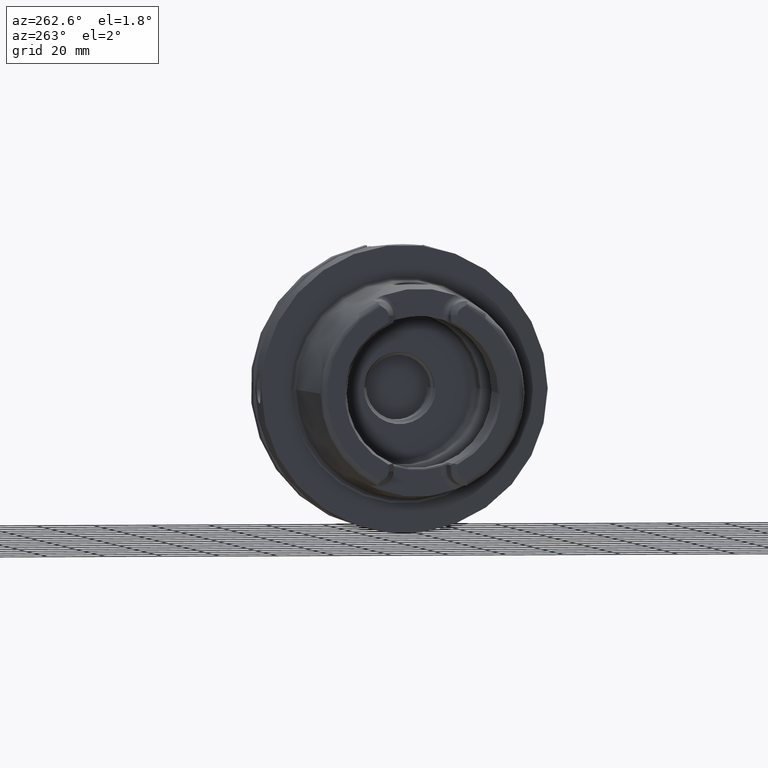
[diagram: clean part render]
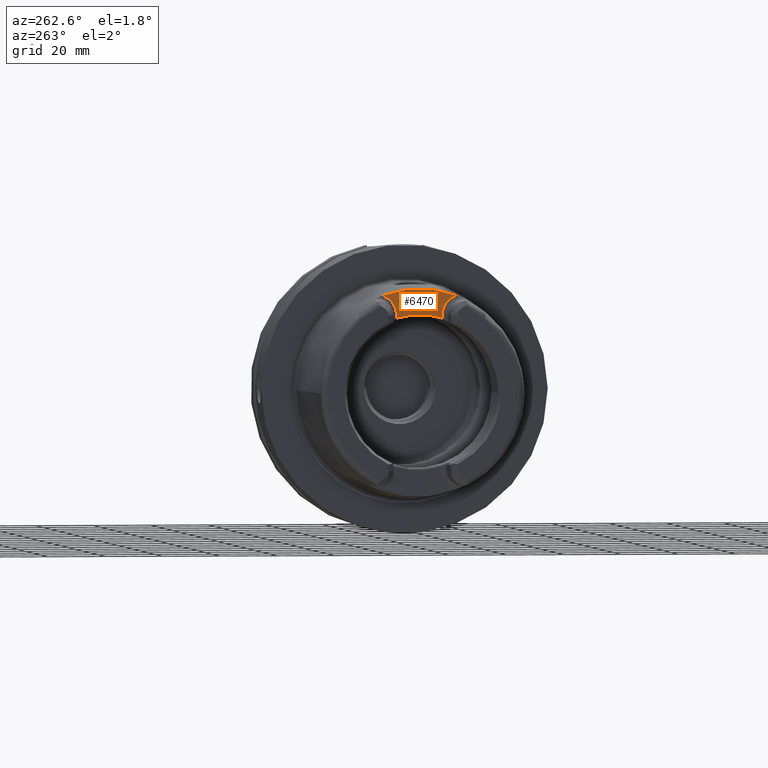
[diagram: same view with one face highlighted and labeled with its STEP entity id]
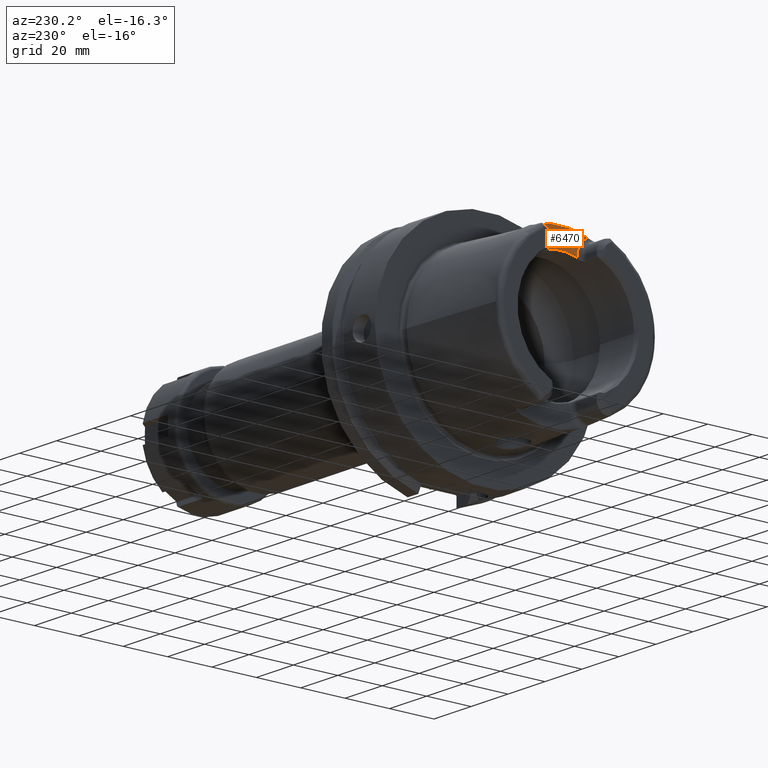
[diagram: same view with one face highlighted and labeled with its STEP entity id]
A machine part, auxiliary view. The second image highlights one B-rep face of the part: STEP entity #6470.
A second angle (auxiliary view) of the same face is appended — the face is thin or edge-on in the first view.
In plain terms, the highlighted planar face has unit normal (-1, 0, 0).
Its self-contained STEP definition (entity closure, byte-faithful):
#9=CARTESIAN_POINT('',(-4.E1,0.E0,0.E0));
#10=DIRECTION('',(1.E0,0.E0,0.E0));
#11=DIRECTION('',(0.E0,3.574556786365E-1,9.339301032789E-1));
#12=AXIS2_PLACEMENT_3D('',#9,#10,#11);
#2634=DIRECTION('',(0.E0,5.174062213620E-12,1.E0));
#2635=VECTOR('',#2634,1.199558594508E0);
#2636=CARTESIAN_POINT('',(-4.E1,8.009999999994E0,2.576044140549E1));
#2637=LINE('',#2636,#2635);
#2638=CARTESIAN_POINT('',(-4.E1,1.501E1,2.696E1));
#2639=DIRECTION('',(-1.E0,0.E0,0.E0));
#2640=DIRECTION('',(0.E0,-1.E0,0.E0));
#2641=AXIS2_PLACEMENT_3D('',#2638,#2639,#2640);
#2643=CARTESIAN_POINT('',(-4.E1,-1.501E1,2.696E1));
#2644=DIRECTION('',(-1.E0,0.E0,0.E0));
#2645=DIRECTION('',(0.E0,3.057634963159E-1,9.521074962002E-1));
#2646=AXIS2_PLACEMENT_3D('',#2643,#2644,#2645);
#2648=DIRECTION('',(0.E0,6.866664706538E-12,-1.E0));
#2649=VECTOR('',#2648,1.199558594503E0);
#2650=CARTESIAN_POINT('',(-4.E1,-8.010000000001E0,2.695999999999E1));
#2651=LINE('',#2650,#2649);
#2652=CARTESIAN_POINT('',(-4.E1,8.009999999994E0,2.576044140549E1));
#2653=CARTESIAN_POINT('',(-4.E1,7.269616392493E0,2.599521452766E1));
#2654=CARTESIAN_POINT('',(-4.E1,5.774680607733E0,2.639793295020E1));
#2655=CARTESIAN_POINT('',(-4.E1,3.481759859025E0,2.680464578135E1));
#2656=CARTESIAN_POINT('',(-4.E1,1.163574268407E0,2.700848033442E1));
#2657=CARTESIAN_POINT('',(-4.E1,-1.163574229637E0,2.700848033529E1));
#2658=CARTESIAN_POINT('',(-4.E1,-3.481759771637E0,2.680464579107E1));
#2659=CARTESIAN_POINT('',(-4.E1,-5.774680487919E0,2.639793297771E1));
#2660=CARTESIAN_POINT('',(-4.E1,-7.269616343063E0,2.599521454333E1));
#2661=CARTESIAN_POINT('',(-4.E1,-8.009999999993E0,2.576044140549E1));
#2847=CARTESIAN_POINT('',(-4.E1,8.01E0,2.696E1));
#2849=VERTEX_POINT('',#2847);
#2851=CARTESIAN_POINT('',(-4.E1,-8.01E0,2.696E1));
#2853=VERTEX_POINT('',#2851);
#2855=CARTESIAN_POINT('',(-4.E1,1.286965552579E1,3.362475247340E1));
#2856=VERTEX_POINT('',#2855);
#2861=CARTESIAN_POINT('',(-4.E1,-1.286965552579E1,3.362475247340E1));
#2862=VERTEX_POINT('',#2861);
#2903=CARTESIAN_POINT('',(-4.E1,8.009999999994E0,2.576044140549E1));
#2904=VERTEX_POINT('',#2903);
#2905=CARTESIAN_POINT('',(-4.E1,-8.009999999993E0,2.576044140549E1));
#2906=VERTEX_POINT('',#2905);
#6455=CARTESIAN_POINT('',(-4.E1,0.E0,0.E0));
#6456=DIRECTION('',(-1.E0,0.E0,0.E0));
#6457=DIRECTION('',(0.E0,0.E0,1.E0));
#6458=AXIS2_PLACEMENT_3D('',#6455,#6456,#6457);
#6459=PLANE('',#6458);
#6460=ORIENTED_EDGE('',*,*,#3478,.T.);
#6461=ORIENTED_EDGE('',*,*,#3496,.T.);
#6462=ORIENTED_EDGE('',*,*,#3263,.T.);
#6464=ORIENTED_EDGE('',*,*,#6463,.T.);
#6466=ORIENTED_EDGE('',*,*,#6465,.T.);
#6467=ORIENTED_EDGE('',*,*,#6446,.F.);
#6468=EDGE_LOOP('',(#6460,#6461,#6462,#6464,#6466,#6467));
#6469=FACE_OUTER_BOUND('',#6468,.F.);
#6470=ADVANCED_FACE('',(#6469),#6459,.T.);
#13=CIRCLE('',#12,3.60035E1);
#2642=CIRCLE('',#2641,7.E0);
#2647=CIRCLE('',#2646,7.E0);
#2662=B_SPLINE_CURVE_WITH_KNOTS('',3,(#2652,#2653,#2654,#2655,#2656,#2657,#2658,
#2659,#2660,#2661),.UNSPECIFIED.,.F.,.F.,(4,1,1,1,1,1,1,4),(0.E0,
1.428571428571E-1,2.857142857143E-1,4.285714285714E-1,5.714285714286E-1,
7.142857142857E-1,8.571428571429E-1,1.E0),.UNSPECIFIED.);
#3263=EDGE_CURVE('',#2856,#2862,#13,.T.);
#3478=EDGE_CURVE('',#2904,#2849,#2637,.T.);
#3496=EDGE_CURVE('',#2849,#2856,#2642,.T.);
#6446=EDGE_CURVE('',#2904,#2906,#2662,.T.);
#6463=EDGE_CURVE('',#2862,#2853,#2647,.T.);
#6465=EDGE_CURVE('',#2853,#2906,#2651,.T.);